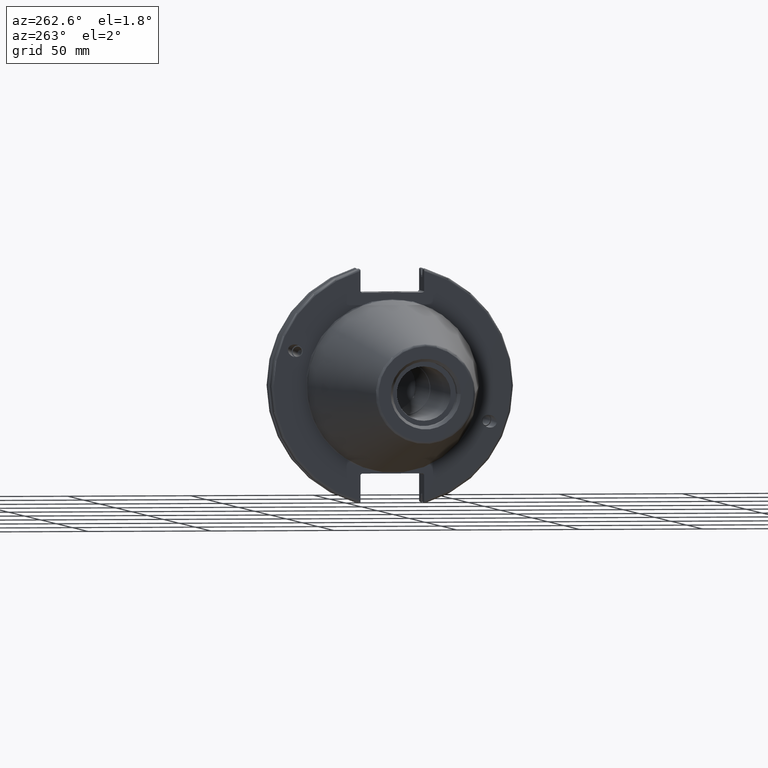
[diagram: clean part render]
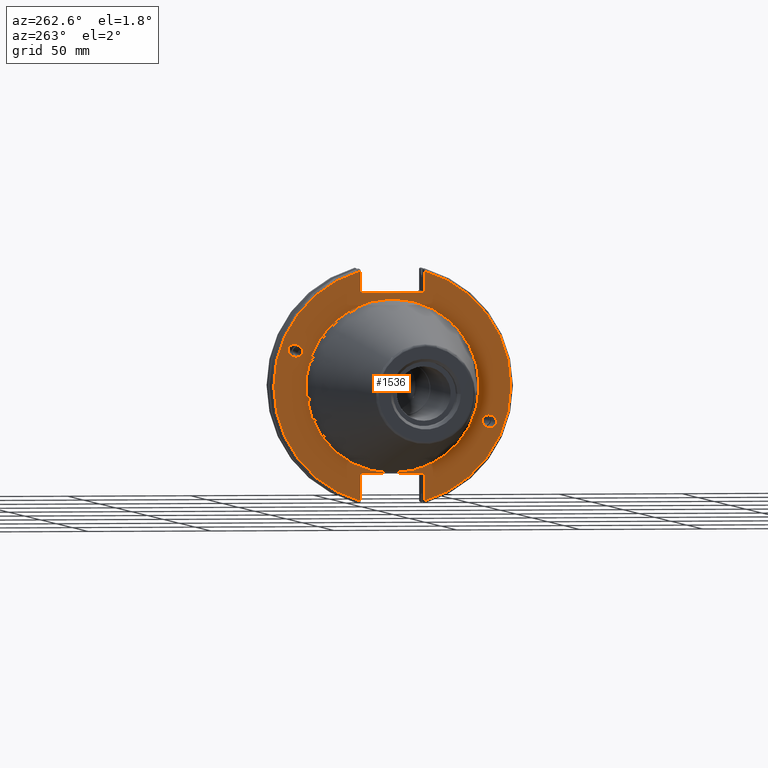
[diagram: same view with one face highlighted and labeled with its STEP entity id]
A machine part, auxiliary view. The second image highlights one B-rep face of the part: STEP entity #1536.
In plain terms, the highlighted planar face has unit normal (-1, 0, 0).
Its self-contained STEP definition (entity closure, byte-faithful):
#85=FACE_BOUND('',#319,.T.);
#86=FACE_BOUND('',#320,.T.);
#87=FACE_BOUND('',#321,.T.);
#103=PLANE('',#1702);
#138=ELLIPSE('',#1658,3.05193647190364,2.5);
#139=ELLIPSE('',#1692,3.05193647190364,2.5);
#213=FACE_OUTER_BOUND('',#318,.T.);
#318=EDGE_LOOP('',(#1238,#1239,#1240,#1241,#1242,#1243,#1244,#1245,#1246,
#1247,#1248,#1249));
#319=EDGE_LOOP('',(#1250));
#320=EDGE_LOOP('',(#1251));
#321=EDGE_LOOP('',(#1252));
#418=LINE('',#2850,#514);
#419=LINE('',#2852,#515);
#420=LINE('',#2854,#516);
#421=LINE('',#2856,#517);
#422=LINE('',#2858,#518);
#423=LINE('',#2862,#519);
#424=LINE('',#2864,#520);
#425=LINE('',#2866,#521);
#426=LINE('',#2868,#522);
#427=LINE('',#2869,#523);
#514=VECTOR('',#2023,10.);
#515=VECTOR('',#2024,10.);
#516=VECTOR('',#2025,10.);
#517=VECTOR('',#2026,10.);
#518=VECTOR('',#2027,10.);
#519=VECTOR('',#2030,10.);
#520=VECTOR('',#2031,10.);
#521=VECTOR('',#2032,10.);
#522=VECTOR('',#2033,10.);
#523=VECTOR('',#2034,10.);
#609=CIRCLE('',#1700,35.125);
#611=CIRCLE('',#1703,48.2125);
#612=CIRCLE('',#1704,48.2125);
#693=VERTEX_POINT('',#2567);
#731=VERTEX_POINT('',#2826);
#736=VERTEX_POINT('',#2841);
#737=VERTEX_POINT('',#2846);
#738=VERTEX_POINT('',#2847);
#739=VERTEX_POINT('',#2849);
#740=VERTEX_POINT('',#2851);
#741=VERTEX_POINT('',#2853);
#742=VERTEX_POINT('',#2855);
#743=VERTEX_POINT('',#2857);
#744=VERTEX_POINT('',#2859);
#745=VERTEX_POINT('',#2861);
#746=VERTEX_POINT('',#2863);
#747=VERTEX_POINT('',#2865);
#748=VERTEX_POINT('',#2867);
#863=EDGE_CURVE('',#693,#693,#138,.T.);
#914=EDGE_CURVE('',#731,#731,#139,.T.);
#921=EDGE_CURVE('',#736,#736,#609,.T.);
#923=EDGE_CURVE('',#737,#738,#611,.T.);
#924=EDGE_CURVE('',#737,#739,#418,.T.);
#925=EDGE_CURVE('',#740,#739,#419,.T.);
#926=EDGE_CURVE('',#740,#741,#420,.T.);
#927=EDGE_CURVE('',#742,#741,#421,.T.);
#928=EDGE_CURVE('',#742,#743,#422,.T.);
#929=EDGE_CURVE('',#744,#743,#612,.T.);
#930=EDGE_CURVE('',#744,#745,#423,.T.);
#931=EDGE_CURVE('',#746,#745,#424,.T.);
#932=EDGE_CURVE('',#746,#747,#425,.T.);
#933=EDGE_CURVE('',#748,#747,#426,.T.);
#934=EDGE_CURVE('',#748,#738,#427,.T.);
#1238=ORIENTED_EDGE('',*,*,#923,.F.);
#1239=ORIENTED_EDGE('',*,*,#924,.T.);
#1240=ORIENTED_EDGE('',*,*,#925,.F.);
#1241=ORIENTED_EDGE('',*,*,#926,.T.);
#1242=ORIENTED_EDGE('',*,*,#927,.F.);
#1243=ORIENTED_EDGE('',*,*,#928,.T.);
#1244=ORIENTED_EDGE('',*,*,#929,.F.);
#1245=ORIENTED_EDGE('',*,*,#930,.T.);
#1246=ORIENTED_EDGE('',*,*,#931,.F.);
#1247=ORIENTED_EDGE('',*,*,#932,.T.);
#1248=ORIENTED_EDGE('',*,*,#933,.F.);
#1249=ORIENTED_EDGE('',*,*,#934,.T.);
#1250=ORIENTED_EDGE('',*,*,#863,.T.);
#1251=ORIENTED_EDGE('',*,*,#914,.T.);
#1252=ORIENTED_EDGE('',*,*,#921,.F.);
#1536=ADVANCED_FACE('',(#213,#85,#86,#87),#103,.T.);
#1658=AXIS2_PLACEMENT_3D('',#2569,#1913,#1914);
#1692=AXIS2_PLACEMENT_3D('',#2828,#1997,#1998);
#1700=AXIS2_PLACEMENT_3D('',#2843,#2015,#2016);
#1702=AXIS2_PLACEMENT_3D('',#2845,#2019,#2020);
#1703=AXIS2_PLACEMENT_3D('',#2848,#2021,#2022);
#1704=AXIS2_PLACEMENT_3D('',#2860,#2028,#2029);
#1913=DIRECTION('center_axis',(1.,0.,0.));
#1914=DIRECTION('ref_axis',(0.,-0.939692620785908,-0.342020143325668));
#1997=DIRECTION('center_axis',(1.,0.,0.));
#1998=DIRECTION('ref_axis',(0.,0.939692620785908,0.342020143325669));
#2015=DIRECTION('center_axis',(-1.,0.,0.));
#2016=DIRECTION('ref_axis',(0.,-1.,1.83697019872103E-16));
#2019=DIRECTION('center_axis',(-1.,0.,0.));
#2020=DIRECTION('ref_axis',(0.,0.,1.));
#2021=DIRECTION('center_axis',(1.,0.,0.));
#2022=DIRECTION('ref_axis',(0.,-1.,1.60812264967664E-16));
#2023=DIRECTION('',(0.,0.,-1.));
#2024=DIRECTION('',(0.,-0.707106781186549,0.707106781186546));
#2025=DIRECTION('',(0.,1.,0.));
#2026=DIRECTION('',(0.,-0.707106781186549,-0.707106781186546));
#2027=DIRECTION('',(0.,0.,1.));
#2028=DIRECTION('center_axis',(1.,0.,0.));
#2029=DIRECTION('ref_axis',(0.,1.,-6.12323399573677E-17));
#2030=DIRECTION('',(0.,0.,1.));
#2031=DIRECTION('',(0.,0.707106781186549,-0.707106781186546));
#2032=DIRECTION('',(0.,-1.,0.));
#2033=DIRECTION('',(0.,0.707106781186549,0.707106781186546));
#2034=DIRECTION('',(0.,0.,-1.));
#2567=CARTESIAN_POINT('',(3.175,-36.5992078912529,-13.3210222701368));
#2569=CARTESIAN_POINT('Origin',(3.175,-39.4670900730082,-14.3648460196781));
#2826=CARTESIAN_POINT('',(3.175,36.5992078912529,13.3210222701368));
#2828=CARTESIAN_POINT('Origin',(3.175,39.4670900730082,14.3648460196781));
#2841=CARTESIAN_POINT('',(3.175,-4.30157188200508E-15,35.125));
#2843=CARTESIAN_POINT('Origin',(3.175,0.,0.));
#2845=CARTESIAN_POINT('Origin',(3.175,49.2125,0.));
#2846=CARTESIAN_POINT('',(3.175,-12.95,46.4407434937254));
#2847=CARTESIAN_POINT('',(3.175,-12.95,-46.4407434937254));
#2848=CARTESIAN_POINT('Origin',(3.175,0.,0.));
#2849=CARTESIAN_POINT('',(3.175,-12.95,38.219));
#2850=CARTESIAN_POINT('',(3.175,-12.95,18.8595));
#2851=CARTESIAN_POINT('',(3.175,-12.45,37.719));
#2852=CARTESIAN_POINT('',(3.175,12.2703750000001,12.998625));
#2853=CARTESIAN_POINT('',(3.175,12.45,37.719));
#2854=CARTESIAN_POINT('',(3.175,24.60625,37.719));
#2855=CARTESIAN_POINT('',(3.175,12.95,38.219));
#2856=CARTESIAN_POINT('',(3.175,12.335875,37.604875));
#2857=CARTESIAN_POINT('',(3.175,12.95,46.4407434937254));
#2858=CARTESIAN_POINT('',(3.175,12.95,18.8595));
#2859=CARTESIAN_POINT('',(3.175,12.95,-46.4407434937254));
#2860=CARTESIAN_POINT('Origin',(3.175,0.,0.));
#2861=CARTESIAN_POINT('',(3.175,12.95,-35.806));
#2862=CARTESIAN_POINT('',(3.175,12.95,-17.653));
#2863=CARTESIAN_POINT('',(3.175,12.45,-35.306));
#2864=CARTESIAN_POINT('',(3.175,12.939125,-35.795125));
#2865=CARTESIAN_POINT('',(3.175,-12.45,-35.306));
#2866=CARTESIAN_POINT('',(3.175,24.60625,-35.306));
#2867=CARTESIAN_POINT('',(3.175,-12.95,-35.806));
#2868=CARTESIAN_POINT('',(3.175,11.6671250000001,-11.188875));
#2869=CARTESIAN_POINT('',(3.175,-12.95,-17.653));